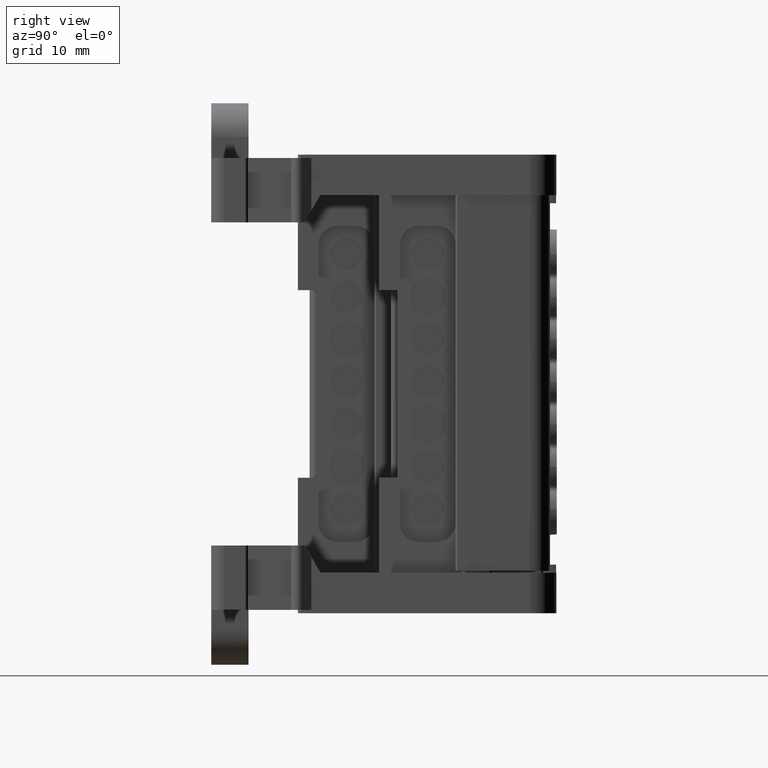
[diagram: clean part render]
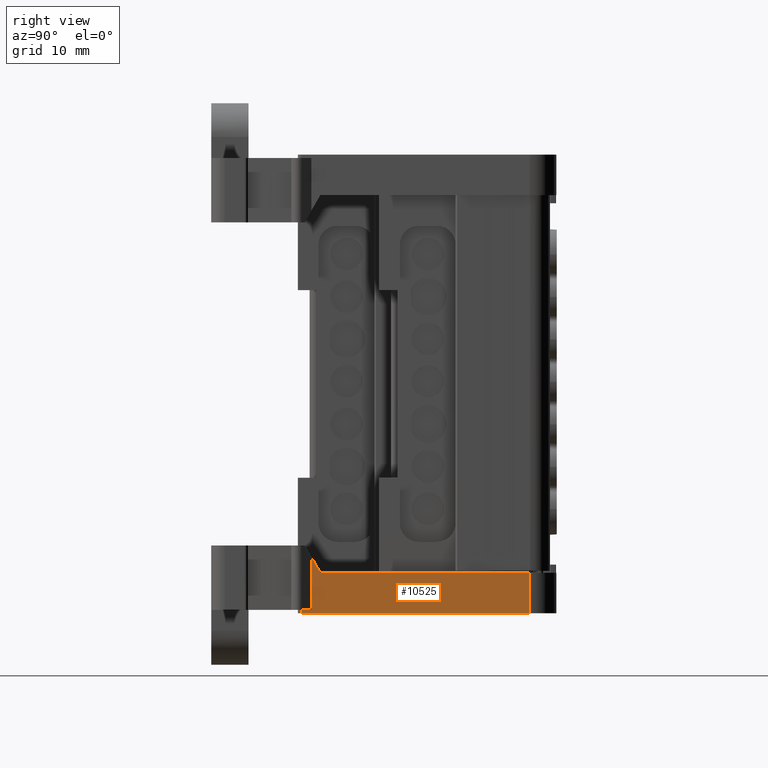
[diagram: same view with one face highlighted and labeled with its STEP entity id]
A machine part, right view. The second image highlights one B-rep face of the part: STEP entity #10525.
In plain terms, the highlighted planar face has unit normal (-1, -0, -0).
Its self-contained STEP definition (entity closure, byte-faithful):
#2790 = VERTEX_POINT ( 'NONE', #30640 ) ;
#3899 = VERTEX_POINT ( 'NONE', #30844 ) ;
#3968 = VERTEX_POINT ( 'NONE', #30951 ) ;
#3977 = VERTEX_POINT ( 'NONE', #30972 ) ;
#4005 = VERTEX_POINT ( 'NONE', #31112 ) ;
#4635 = VECTOR ( 'NONE', #34875, 1000.000000000000000 ) ;
#4920 = AXIS2_PLACEMENT_3D ( 'NONE', #55741, #55762, #55720 ) ;
#5509 = VECTOR ( 'NONE', #29034, 1000.000000000000100 ) ;
#5529 = VECTOR ( 'NONE', #29065, 1000.000000000000000 ) ;
#5537 = VECTOR ( 'NONE', #29156, 1000.000000000000000 ) ;
#6145 = ORIENTED_EDGE ( 'NONE', *, *, #14549, .F. ) ;
#6156 = ORIENTED_EDGE ( 'NONE', *, *, #11202, .F. ) ;
#6160 = ORIENTED_EDGE ( 'NONE', *, *, #11682, .F. ) ;
#6162 = ORIENTED_EDGE ( 'NONE', *, *, #11232, .F. ) ;
#6173 = ORIENTED_EDGE ( 'NONE', *, *, #11211, .F. ) ;
#6174 = ORIENTED_EDGE ( 'NONE', *, *, #11206, .F. ) ;
#6274 = ORIENTED_EDGE ( 'NONE', *, *, #14591, .T. ) ;
#10525 = ADVANCED_FACE ( 'NONE', ( #55678 ), #55726, .F. ) ;
#11202 = EDGE_CURVE ( 'NONE', #4005, #3977, #29016, .T. ) ;
#11206 = EDGE_CURVE ( 'NONE', #3899, #3968, #62034, .T. ) ;
#11211 = EDGE_CURVE ( 'NONE', #24389, #4005, #29042, .T. ) ;
#11232 = EDGE_CURVE ( 'NONE', #3968, #24338, #29142, .T. ) ;
#11682 = EDGE_CURVE ( 'NONE', #24338, #24389, #34906, .T. ) ;
#14549 = EDGE_CURVE ( 'NONE', #2790, #3899, #27783, .T. ) ;
#14591 = EDGE_CURVE ( 'NONE', #2790, #3977, #37121, .T. ) ;
#16505 = VECTOR ( 'NONE', #27784, 1000.000000000000000 ) ;
#24338 = VERTEX_POINT ( 'NONE', #55931 ) ;
#24389 = VERTEX_POINT ( 'NONE', #55933 ) ;
#27783 = LINE ( 'NONE', #27816, #16505 ) ;
#27784 = DIRECTION ( 'NONE',  ( 6.938893903895729800E-018, -0.0000000000000000000, -1.000000000000000000 ) ) ;
#27816 = CARTESIAN_POINT ( 'NONE',  ( -25.88403632107857900, 45.48168290469487100, 9.795974490130550500 ) ) ;
#27953 = CARTESIAN_POINT ( 'NONE',  ( -25.88403632107857900, 24.98170587899553800, -36.09779384098916900 ) ) ;
#27982 = CARTESIAN_POINT ( 'NONE',  ( -25.88403632107859700, 45.48168290469487100, -36.09779384098930400 ) ) ;
#27983 = CARTESIAN_POINT ( 'NONE',  ( -25.88403632107857900, 35.23169439184520300, -36.09779384098916900 ) ) ;
#27986 = CARTESIAN_POINT ( 'NONE',  ( -25.88403632107857200, 14.73171736614590300, -36.09779384098925400 ) ) ;
#29016 = LINE ( 'NONE', #29031, #5509 ) ;
#29031 = CARTESIAN_POINT ( 'NONE',  ( -25.88403632107857900, 13.41374584738987800, -33.81500020757466300 ) ) ;
#29034 = DIRECTION ( 'NONE',  ( 0.0000000000000000000, 0.4999999999999321100, -0.8660254037844777900 ) ) ;
#29039 = CARTESIAN_POINT ( 'NONE',  ( -25.88403632107857900, 13.41374584738988700, 9.795974490130550500 ) ) ;
#29041 = CARTESIAN_POINT ( 'NONE',  ( -25.88403632107857900, 11.92058348562462200, -42.06280227554850600 ) ) ;
#29042 = LINE ( 'NONE', #29039, #5529 ) ;
#29046 = CARTESIAN_POINT ( 'NONE',  ( -25.88403632107859000, 34.29464976500477700, -42.06280227554850600 ) ) ;
#29057 = CARTESIAN_POINT ( 'NONE',  ( -25.88403632107859700, 45.48168290469485700, -42.06280227554849900 ) ) ;
#29059 = CARTESIAN_POINT ( 'NONE',  ( -25.88403632107858600, 23.10761662531469800, -42.06280227554850600 ) ) ;
#29065 = DIRECTION ( 'NONE',  ( -6.938893903895729800E-018, 0.0000000000000000000, 1.000000000000000000 ) ) ;
#29142 = LINE ( 'NONE', #29164, #5537 ) ;
#29156 = DIRECTION ( 'NONE',  ( -6.938893903895729800E-018, 0.0000000000000000000, 1.000000000000000000 ) ) ;
#29164 = CARTESIAN_POINT ( 'NONE',  ( -25.88403632107857900, 11.92058348562462200, 9.795974490130550500 ) ) ;
#30640 = CARTESIAN_POINT ( 'NONE',  ( -25.88403632107859700, 45.48168290469487100, -36.09779384098930400 ) ) ;
#30844 = CARTESIAN_POINT ( 'NONE',  ( -25.88403632107859700, 45.48168290469485700, -42.06280227554849900 ) ) ;
#30951 = CARTESIAN_POINT ( 'NONE',  ( -25.88403632107857900, 11.92058348562462200, -42.06280227554850600 ) ) ;
#30972 = CARTESIAN_POINT ( 'NONE',  ( -25.88403632107857200, 14.73171736614590300, -36.09779384098925400 ) ) ;
#31112 = CARTESIAN_POINT ( 'NONE',  ( -25.88403632107857500, 13.41374584738987300, -33.81500020757466300 ) ) ;
#34875 = DIRECTION ( 'NONE',  ( 0.0000000000000000000, 1.000000000000000000, 0.0000000000000000000 ) ) ;
#34906 = LINE ( 'NONE', #34908, #4635 ) ;
#34908 = CARTESIAN_POINT ( 'NONE',  ( -25.88403632107857900, 13.41374584738997000, -41.56427430695350000 ) ) ;
#37121 = B_SPLINE_CURVE_WITH_KNOTS ( 'NONE', 3,
 ( #27982, #27983, #27953, #27986 ),
 .UNSPECIFIED., .F., .F.,
 ( 4, 4 ),
 ( 0.0000000000000000000, 1.000000000000000000 ),
 .UNSPECIFIED. ) ;
#55678 = FACE_OUTER_BOUND ( 'NONE', #67788, .T. ) ;
#55720 = DIRECTION ( 'NONE',  ( -6.938893903895729800E-018, 0.0000000000000000000, 1.000000000000000000 ) ) ;
#55726 = PLANE ( 'NONE',  #4920 ) ;
#55741 = CARTESIAN_POINT ( 'NONE',  ( -25.88403632107857900, 12.41911145422002200, 9.795974490130550500 ) ) ;
#55762 = DIRECTION ( 'NONE',  ( -1.000000000000000000, -5.567141245485240800E-032, -6.938893903895729800E-018 ) ) ;
#55931 = CARTESIAN_POINT ( 'NONE',  ( -25.88403632107857900, 11.92058348562462600, -41.56427430695350000 ) ) ;
#55933 = CARTESIAN_POINT ( 'NONE',  ( -25.88403632107857900, 13.41374584738988700, -41.56427430695350000 ) ) ;
#62034 = B_SPLINE_CURVE_WITH_KNOTS ( 'NONE', 3,
 ( #29057, #29046, #29059, #29041 ),
 .UNSPECIFIED., .F., .F.,
 ( 4, 4 ),
 ( 0.0000000000000000000, 1.000000000000000000 ),
 .UNSPECIFIED. ) ;
#67788 = EDGE_LOOP ( 'NONE', ( #6156, #6173, #6160, #6162, #6174, #6145, #6274 ) ) ;